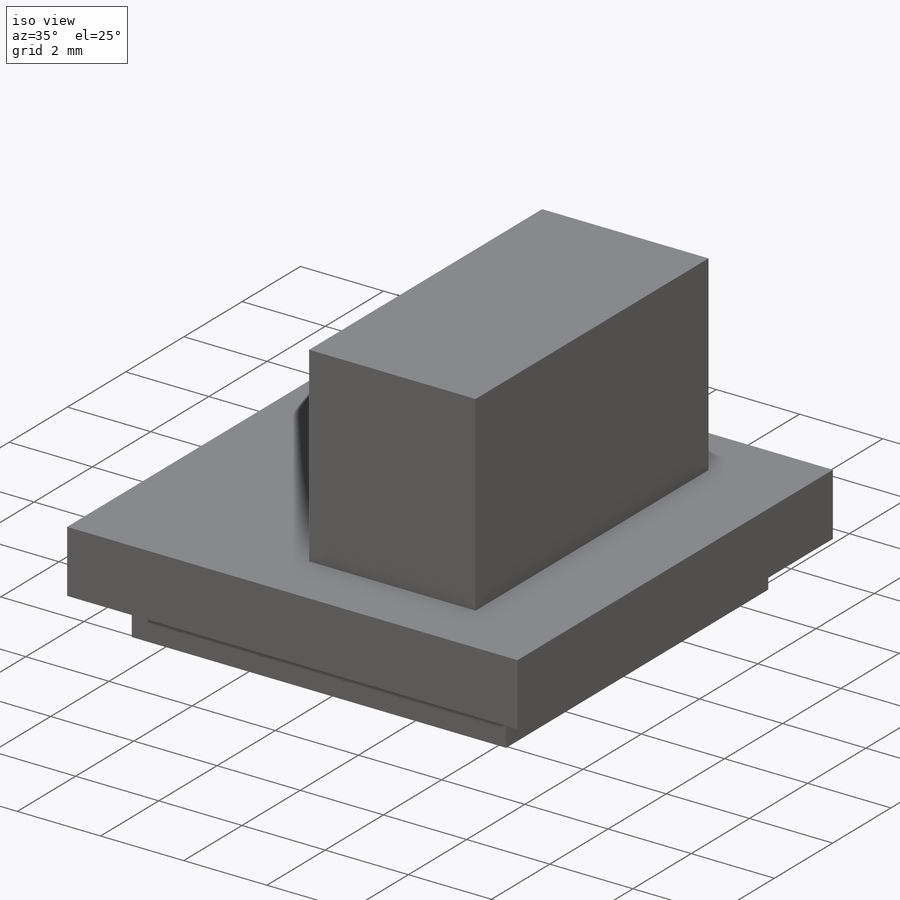
[diagram: iso view]
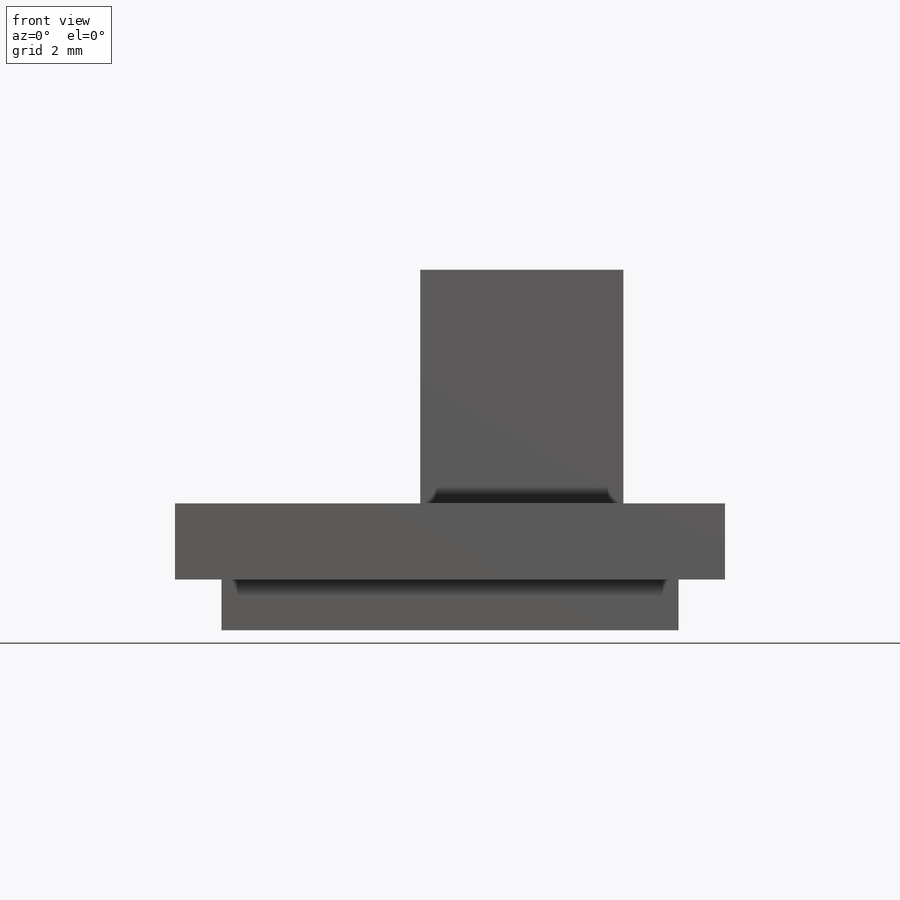
[diagram: front view]
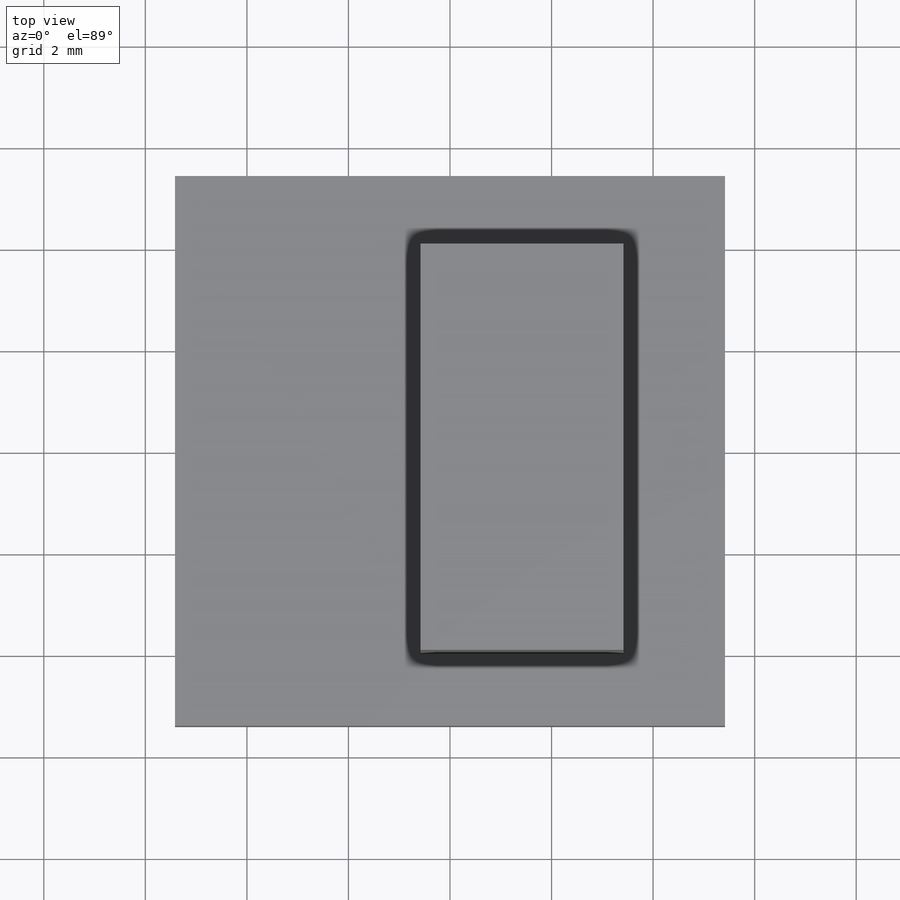
[diagram: top view]
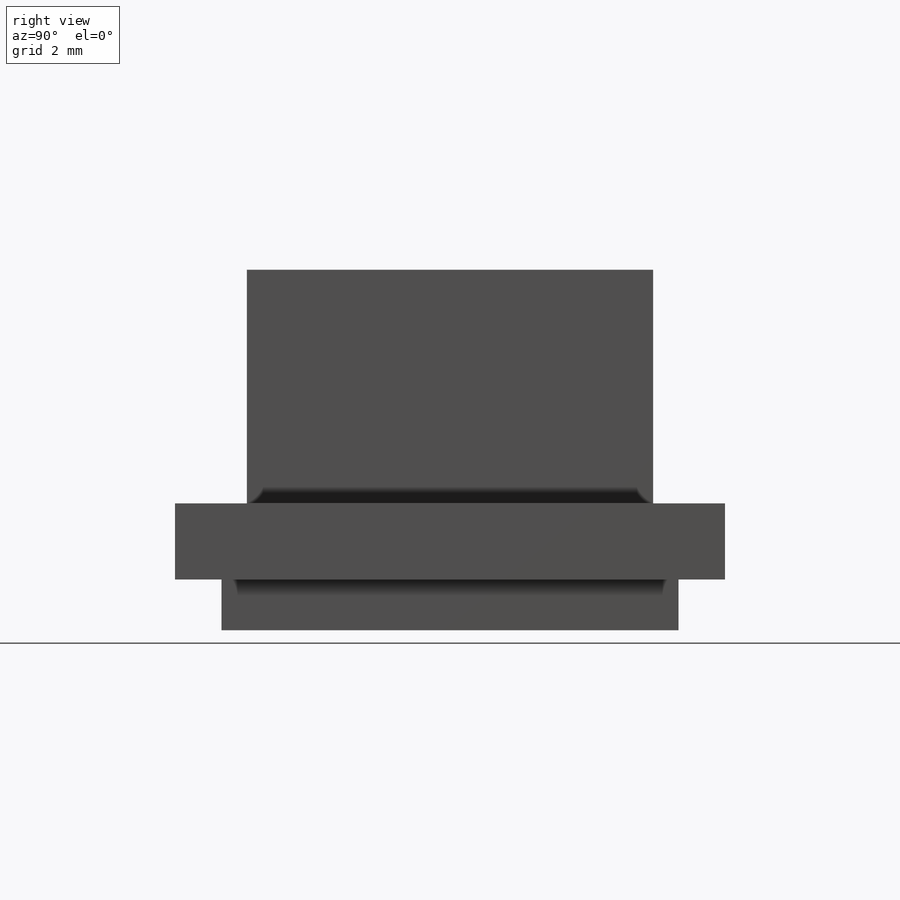
[diagram: right view]
SOLIDWORKS PART (.sldprt)
format: sldprt  version: not decoded by parser v0  size: 168,960 bytes
history: native  units: mm
features: sketch x4, extrude x3, material x1 (+11 scaffold rows collapsed)
feature tree (19):
  scaffold x11  (default folders/planes/origin — collapsed)
  material  "Material <not specified>"
  sketch  "Sketch1"  dims[D1=10.83mm]
  extrude  "Extrude1"  Depth=1.5mm
  sketch  "Sketch2"  dims[D1=9.0mm]
  extrude  "Extrude2"  Depth=1mm
  sketch  "Sketch3"  dims[D1=8.0mm D2=4.0mm D3=6.0mm]
  extrude  "Extrude3"  Depth=4.6mm
  sketch  "Sketch4"  dims[D1=4.73mm D2=3.02mm]
decode coverage: 7 of 7 modeling features carry decoded parameters
note: suppression state not decoded; provenance and decode notes live in map.json
